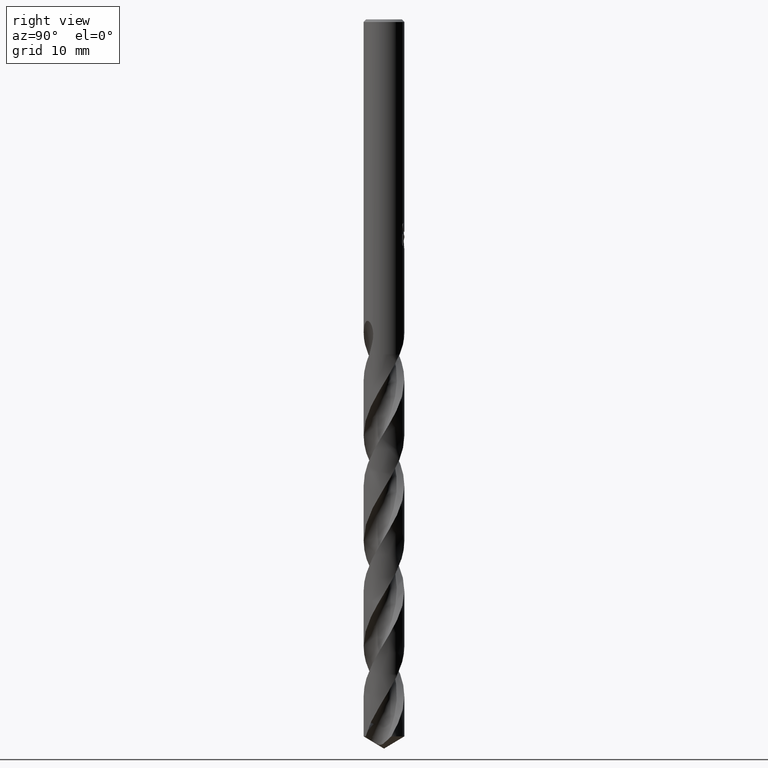
[diagram: clean part render]
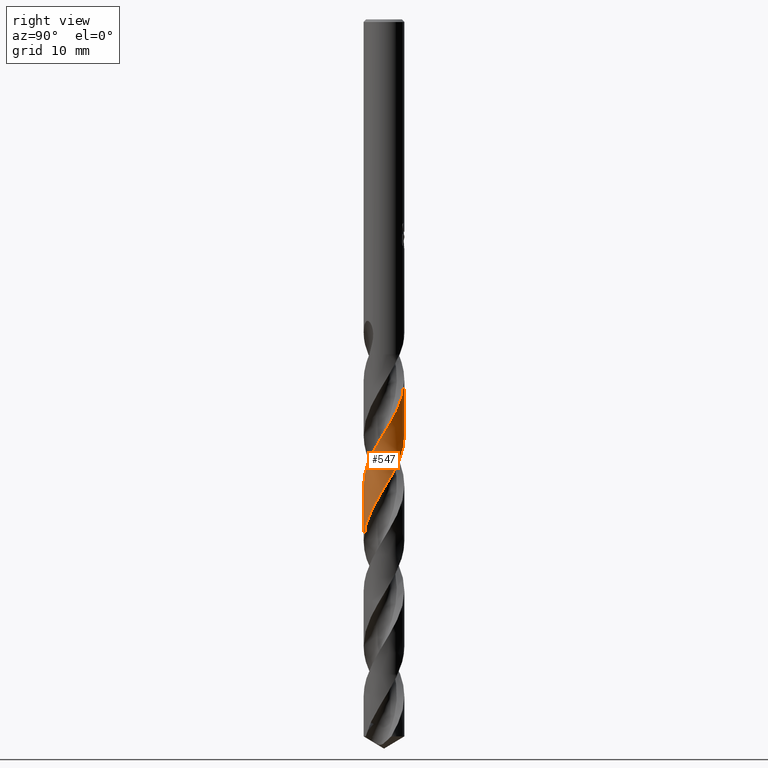
[diagram: same view with one face highlighted and labeled with its STEP entity id]
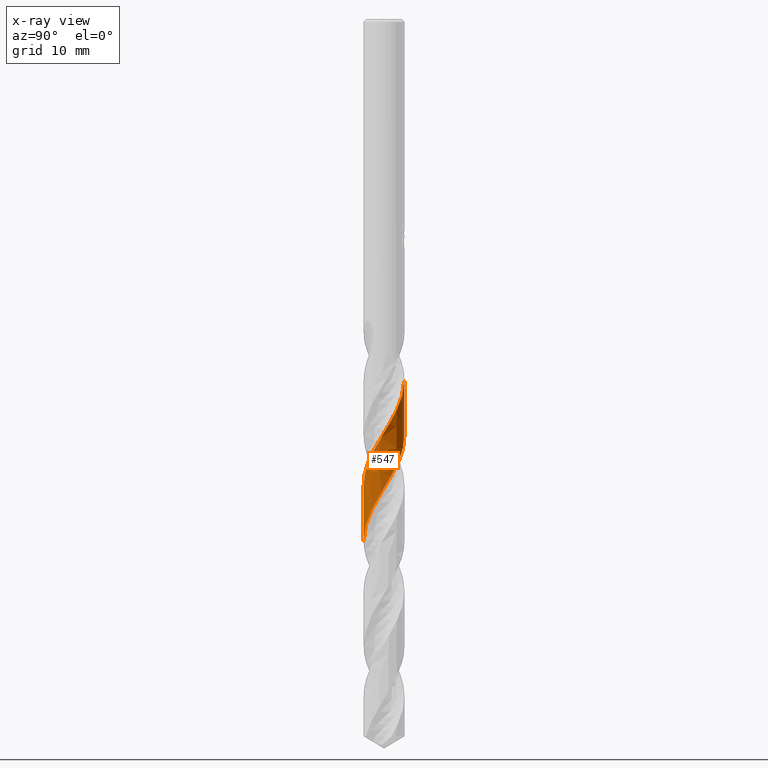
[diagram: x-ray of the same camera — body ghosted, the highlighted face saturated]
A machine part, right view. The second image highlights one B-rep face of the part: STEP entity #547.
The next image is the same camera in x-ray: the body ghosted, the highlighted face saturated — about 0% of this face is hidden behind the body in this view.
In plain terms, the highlighted conical surface has half-angle 0 deg.
Its self-contained STEP definition (entity closure, byte-faithful):
#363=EDGE_CURVE('',#585,#579,#870,.T.);
#369=EDGE_CURVE('',#563,#649,#877,.T.);
#547=ADVANCED_FACE('',(#1072),#1073,.T.);
#563=VERTEX_POINT('',#1091);
#579=VERTEX_POINT('',#1107);
#585=VERTEX_POINT('',#1113);
#641=EDGE_CURVE('',#563,#579,#1173,.T.);
#649=VERTEX_POINT('',#1182);
#751=EDGE_CURVE('',#585,#649,#1294,.T.);
#870=B_SPLINE_CURVE_WITH_KNOTS('',3,(#3023,#3024,#3025,#3026,#3027,#3028,#3029,#3030,#3031,#3032,#3033,#3034,#3035,#3036,#3037,#3038,#3039,#3040,#3041,#3042,#3043,#3044,#3045,#3046,#3047,#3048,#3049,#3050,#3051,#3052,#3053,#3054,#3055,#3056,#3057,#3058,#3059,#3060,#3061,#3062,#3063,#3064,#3065,#3066,#3067,#3068,#3069,#3070,#3071,#3072,#3073,#3074,#3075,#3076,#3077,#3078,#3079,#3080,#3081,#3082,#3083,#3084,#3085,#3086,#3087,#3088,#3089,#3090,#3091,#3092,#3093,#3094,#3095,#3096,#3097,#3098,#3099,#3100,#3101,#3102,#3103,#3104,#3105,#3106,#3107,#3108,#3109,#3110,#3111,#3112,#3113,#3114,#3115,#3116,#3117,#3118,#3119,#3120,#3121,#3122,#3123,#3124,#3125,#3126,#3127,#3128,#3129,#3130,#3131,#3132,#3133,#3134,#3135,#3136,#3137,#3138,#3139,#3140,#3141,#3142,#3143,#3144,#3145,#3146,#3147,#3148,#3149,#3150,#3151,#3152,#3153,#3154,#3155,#3156,#3157,#3158,#3159,#3160,#3161,#3162,#3163,#3164,#3165,#3166,#3167,#3168,#3169,#3170,#3171,#3172,#3173,#3174,#3175,#3176,#3177,#3178,#3179,#3180,#3181,#3182,#3183,#3184,#3185,#3186,#3187,#3188,#3189,#3190,#3191,#3192,#3193,#3194,#3195,#3196,#3197,#3198,#3199,#3200,#3201,#3202,#3203,#3204,#3205,#3206),.UNSPECIFIED.,.F.,.F.,(4,2,2,2,2,2,2,2,2,2,2,2,2,2,2,2,2,2,2,2,2,2,2,2,2,2,2,2,2,2,2,2,2,2,2,2,2,2,2,2,2,2,2,2,2,2,2,2,2,2,2,2,2,2,2,2,2,2,2,2,2,2,2,2,2,2,2,2,2,2,2,2,2,2,2,2,2,2,2,2,2,2,2,2,2,2,2,2,2,2,2,4),(0.0,0.14343858301379,0.188972399630387,0.211744788178116,0.226388955203841,0.238210347163206,0.24766553920278,0.255166161752204,0.26107393189106,0.26569909147927,0.269302027568404,0.27209724969379,0.274258743413754,0.275925844921514,0.277209001890916,0.545270508381398,0.610968393551029,0.647367371020632,0.678160427595024,0.714936567539963,0.782410513082369,0.82819280588672,0.910436501233352,1.25855004311537,1.43930362974492,1.58973807400488,1.66433376147384,1.82950022207393,3.16551126946806,3.67301060909354,4.50496522098054,5.83580154755301,6.66785787146221,6.82473951649302,8.0229591635271,8.88709863391488,9.77563814892931,10.6159071435761,11.3735993458,12.249961292363,13.138573513619,13.9689279713048,14.7171056654058,15.7087469961302,16.5262688927611,17.317145817988,18.0459376007642,19.0943834165513,19.9142534818849,20.2969261420562,21.5679701063304,22.3499891056177,23.0754685911926,24.1336346854687,24.9717835821478,25.3418710936875,26.631807079598,27.0111226154525,28.2856090249817,29.0598426841685,29.9527134948809,30.7380860372647,31.4645369148953,32.5181182498173,33.3376915339027,33.7182344623233,34.9911251160255,35.7676899280252,36.4911133562095,37.5536149244234,38.3914470573855,38.7597508371868,40.051414245316,40.4283228983953,41.7052335679549,42.0945068803702,43.3547075209412,44.1531160885726,44.8829446608781,45.9222080550438,46.6706701602811,47.5158874671734,48.608866087523,48.7607648400806,49.9654141616701,50.9837244245353,51.4985451677078,51.7567863406212,51.8855977534953,51.9497859521511,51.9818040647308,52.0137690310998),.UNSPECIFIED.);
#877=B_SPLINE_CURVE_WITH_KNOTS('',3,(#3218,#3219,#3220,#3221,#3222,#3223,#3224,#3225,#3226,#3227,#3228,#3229,#3230,#3231,#3232,#3233,#3234,#3235,#3236,#3237,#3238,#3239,#3240,#3241,#3242,#3243,#3244,#3245,#3246,#3247,#3248,#3249,#3250,#3251,#3252,#3253,#3254,#3255,#3256,#3257,#3258,#3259,#3260,#3261,#3262,#3263,#3264,#3265,#3266,#3267,#3268,#3269,#3270,#3271,#3272,#3273,#3274,#3275,#3276,#3277,#3278,#3279,#3280,#3281,#3282,#3283,#3284,#3285,#3286,#3287,#3288,#3289,#3290,#3291,#3292,#3293,#3294,#3295,#3296,#3297,#3298,#3299,#3300,#3301,#3302,#3303,#3304,#3305,#3306,#3307,#3308,#3309,#3310,#3311,#3312,#3313,#3314,#3315,#3316,#3317,#3318,#3319,#3320,#3321,#3322,#3323,#3324,#3325,#3326,#3327,#3328,#3329,#3330,#3331,#3332,#3333,#3334,#3335,#3336,#3337,#3338,#3339,#3340,#3341,#3342,#3343,#3344,#3345,#3346,#3347,#3348,#3349,#3350,#3351,#3352,#3353,#3354,#3355,#3356,#3357,#3358,#3359,#3360,#3361,#3362,#3363,#3364,#3365,#3366,#3367,#3368,#3369,#3370,#3371),.UNSPECIFIED.,.F.,.F.,(4,2,2,2,2,2,2,2,2,2,2,2,2,2,2,2,2,2,2,2,2,2,2,2,2,2,2,2,2,2,2,2,2,2,2,2,2,2,2,2,2,2,2,2,2,2,2,2,2,2,2,2,2,2,2,2,2,2,2,2,2,2,2,2,2,2,2,2,2,2,2,2,2,2,2,2,4),(0.0,0.0402327924461059,1.38903119195594,2.13117347377366,2.95919916126963,3.73005424034199,4.52057601376633,5.35231172295412,6.62681414996502,6.98282198350909,7.93365808091712,8.76144638391114,9.56262136832775,10.3950714279436,11.6550650029972,12.0648807024055,13.2846357287767,13.6582611016672,14.5950054294006,15.4294665098076,16.4151197786019,17.2205977582088,18.5087701879141,18.5682732745359,19.4225927144624,19.8429733851361,20.5656832992116,21.3663636990638,22.1986358126029,23.4823316797768,23.6757525598291,25.2169764843597,25.3684600072268,26.2849223683913,26.7057554316701,27.4310464197736,28.2605551209937,29.0055973505011,29.807218723399,30.6401901329426,31.9378134505868,32.1344036050522,32.9297912618939,33.3511873257744,33.5289953407065,33.9132088244486,34.8509651581723,35.6860667437267,36.9426568017762,37.3549744929917,38.3343697192064,39.1609261019229,39.9376805339706,40.7718709907213,42.0741444148361,42.270559775572,43.8449906185465,43.904300960438,44.7704731410918,45.1894626592151,45.873732983219,46.5885200099584,47.910406577384,48.4180610166505,50.1263361298437,50.3433991536031,50.801710861817,51.0760971161525,51.2282284445184,51.3050519480967,51.4436251601096,51.5155651560572,51.5719361253895,51.6336217200829,51.7335249734407,52.0250253155775,52.4509052358259),.UNSPECIFIED.);
#1072=FACE_OUTER_BOUND('',#5555,.T.);
#1073=CONICAL_SURFACE('',#5556,2.39995,2.21936493711745E-006);
#1091=CARTESIAN_POINT('',(8.13096291229303E-016,-2.39994885598919,-61.5134996165615));
#1107=CARTESIAN_POINT('',(-1.25095808936629E-014,-2.39993433066251,-54.9686874302133));
#1113=CARTESIAN_POINT('',(-1.7466413392474E-014,2.39990676877383,-42.5498696774652));
#1173=LINE('',#6832,#6833);
#1182=CARTESIAN_POINT('',(6.71760039405538E-013,2.39992129238103,-49.0939070995218));
#1294=LINE('',#8730,#8731);
#3023=CARTESIAN_POINT('',(-1.66811490938291,1.72537320958596,-39.505));
#3024=CARTESIAN_POINT('',(-1.65116147605927,1.74176415403253,-39.5465931210194));
#3025=CARTESIAN_POINT('',(-1.63388868674062,1.75798173475211,-39.5882514765582));
#3026=CARTESIAN_POINT('',(-1.61061557163927,1.77918424059149,-39.6430816897766));
#3027=CARTESIAN_POINT('',(-1.60497321471459,1.78427597629089,-39.6562785545574));
#3028=CARTESIAN_POINT('',(-1.59644743816673,1.79189620121012,-39.6760670623909));
#3029=CARTESIAN_POINT('',(-1.59359572101758,1.79443284710127,-39.6826607483154));
#3030=CARTESIAN_POINT('',(-1.58889341593555,1.79859551464351,-39.6934910386165));
#3031=CARTESIAN_POINT('',(-1.58704903338521,1.80022319289269,-39.6977283924381));
#3032=CARTESIAN_POINT('',(-1.58370816984497,1.8031623834421,-39.7053844342152));
#3033=CARTESIAN_POINT('',(-1.58221326648206,1.80447426564491,-39.7088032347847));
#3034=CARTESIAN_POINT('',(-1.57951771859383,1.80683386367879,-39.7149552228815));
#3035=CARTESIAN_POINT('',(-1.5783181252942,1.80788184477078,-39.7176885389849));
#3036=CARTESIAN_POINT('',(-1.57616374475989,1.80976015799608,-39.722589276344));
#3037=CARTESIAN_POINT('',(-1.57520964263273,1.81059067367088,-39.7247568101813));
#3038=CARTESIAN_POINT('',(-1.57350206066509,1.81207469607829,-39.7286310113979));
#3039=CARTESIAN_POINT('',(-1.57274901863907,1.81272832578436,-39.7303377655016));
#3040=CARTESIAN_POINT('',(-1.57140518987042,1.81389328110228,-39.7333803693969));
#3041=CARTESIAN_POINT('',(-1.57081467817656,1.81440468687209,-39.7347162810193));
#3042=CARTESIAN_POINT('',(-1.56976341064944,1.81531422644739,-39.7370926256394));
#3043=CARTESIAN_POINT('',(-1.56930282508988,1.8157124113529,-39.7381331005652));
#3044=CARTESIAN_POINT('',(-1.56848445141761,1.81641936657703,-39.7399806566078));
#3045=CARTESIAN_POINT('',(-1.56812676748327,1.81672816884439,-39.7407877650521));
#3046=CARTESIAN_POINT('',(-1.56749221809113,1.81727567254779,-39.7422189116155));
#3047=CARTESIAN_POINT('',(-1.56721541571231,1.81751439369398,-39.7428429671543));
#3048=CARTESIAN_POINT('',(-1.56672495886431,1.81793718027682,-39.7439482891671));
#3049=CARTESIAN_POINT('',(-1.56651134241958,1.81812125761521,-39.7444295662224));
#3050=CARTESIAN_POINT('',(-1.5661332091682,1.81844698606228,-39.7452812487038));
#3051=CARTESIAN_POINT('',(-1.56596871485132,1.81858864453915,-39.7456516611125));
#3052=CARTESIAN_POINT('',(-1.53143321238679,1.8483216119482,-39.8234019731374));
#3053=CARTESIAN_POINT('',(-1.49619614347158,1.87699252815494,-39.8990170557056));
#3054=CARTESIAN_POINT('',(-1.45004601050293,1.91233437443527,-39.9939132931892));
#3055=CARTESIAN_POINT('',(-1.44089047438461,1.919242704989,-40.0125527009415));
#3056=CARTESIAN_POINT('',(-1.42653647542275,1.92991194591684,-40.0415134372217));
#3057=CARTESIAN_POINT('',(-1.42139782130385,1.93369981993919,-40.0518299635746));
#3058=CARTESIAN_POINT('',(-1.41187028036799,1.94066423015582,-40.0708697820199));
#3059=CARTESIAN_POINT('',(-1.40748944337404,1.94384387522351,-40.0795904813977));
#3060=CARTESIAN_POINT('',(-1.39784336635155,1.95079527097444,-40.0987231184728));
#3061=CARTESIAN_POINT('',(-1.39257386166495,1.95456045192554,-40.1091300910956));
#3062=CARTESIAN_POINT('',(-1.37757931617723,1.9651828143834,-40.1386285678068));
#3063=CARTESIAN_POINT('',(-1.36781664473711,1.97199049644354,-40.1576983983493));
#3064=CARTESIAN_POINT('',(-1.35133228975423,1.98330373809544,-40.1897193768259));
#3065=CARTESIAN_POINT('',(-1.34464625931233,1.98784285885502,-40.2026584058349));
#3066=CARTESIAN_POINT('',(-1.32588660098175,2.00044078333827,-40.2388547898046));
#3067=CARTESIAN_POINT('',(-1.31381472673807,2.00839055265299,-40.2620607244693));
#3068=CARTESIAN_POINT('',(-1.24955895394632,2.04986805554043,-40.3854330590874));
#3069=CARTESIAN_POINT('',(-1.19664572311853,2.08117473323045,-40.4861201634683));
#3070=CARTESIAN_POINT('',(-1.11518339460191,2.12530015236144,-40.6387293243058));
#3071=CARTESIAN_POINT('',(-1.08707764742374,2.13981138435137,-40.6909666859569));
#3072=CARTESIAN_POINT('',(-1.0351347523055,2.16534545736955,-40.7866322654595));
#3073=CARTESIAN_POINT('',(-1.01134989492385,2.17655620772534,-40.8301102823069));
#3074=CARTESIAN_POINT('',(-0.975501226205669,2.19273852148706,-40.8951132302661));
#3075=CARTESIAN_POINT('',(-0.963570493221686,2.1980075555424,-40.9166608946376));
#3076=CARTESIAN_POINT('',(-0.925074689836797,2.21463475591342,-40.9859038561863));
#3077=CARTESIAN_POINT('',(-0.898329716713567,2.22561829576418,-41.0335937441656));
#3078=CARTESIAN_POINT('',(-0.653364597711251,2.32107797297747,-41.4671678202647));
#3079=CARTESIAN_POINT('',(-0.423931167260356,2.37375436452219,-41.8501640870163));
#3080=CARTESIAN_POINT('',(-0.101690200601581,2.39940181352066,-42.3824463810793));
#3081=CARTESIAN_POINT('',(-0.012700879729454,2.40151939398125,-42.5288596292748));
#3082=CARTESIAN_POINT('',(0.221834856677543,2.39407349108038,-42.9157498658143));
#3083=CARTESIAN_POINT('',(0.366865161562154,2.37618531454334,-43.1556884881089));
#3084=CARTESIAN_POINT('',(0.737518441464023,2.29567091450075,-43.7801763087456));
#3085=CARTESIAN_POINT('',(0.957099943411525,2.21312985632647,-44.16238168125));
#3086=CARTESIAN_POINT('',(1.28887652849914,2.02969055337897,-44.7870445244021));
#3087=CARTESIAN_POINT('',(1.40985600842421,1.94761033747481,-45.0266579718643));
#3088=CARTESIAN_POINT('',(1.54393777069402,1.83755145172038,-45.3121811128701));
#3089=CARTESIAN_POINT('',(1.56489981937345,1.81973285221181,-45.3574636731974));
#3090=CARTESIAN_POINT('',(1.74326636530614,1.66275388390024,-45.7488171583069));
#3091=CARTESIAN_POINT('',(1.88214100341168,1.50377228774134,-46.0940477129657));
#3092=CARTESIAN_POINT('',(2.08247401516652,1.20244963524964,-46.689651562324));
#3093=CARTESIAN_POINT('',(2.15421977507757,1.06858659344684,-46.9385567158409));
#3094=CARTESIAN_POINT('',(2.2731287283663,0.785331232709335,-47.4449329730824));
#3095=CARTESIAN_POINT('',(2.31932262499683,0.636126724869852,-47.7010262895585));
#3096=CARTESIAN_POINT('',(2.38042656432452,0.33899861045074,-48.200305920231));
#3097=CARTESIAN_POINT('',(2.39673865150483,0.192227506032483,-48.4424837840682));
#3098=CARTESIAN_POINT('',(2.40198810844994,-0.0878153366752,-48.9041652334711));
#3099=CARTESIAN_POINT('',(2.39345191732934,-0.220644821739502,-49.1226891655413));
#3100=CARTESIAN_POINT('',(2.35138358211255,-0.504248091417622,-49.5946235746941));
#3101=CARTESIAN_POINT('',(2.3142676279802,-0.653752458587922,-49.847047505073));
#3102=CARTESIAN_POINT('',(2.21132066606633,-0.945493300622265,-50.3569994689623));
#3103=CARTESIAN_POINT('',(2.14528532510075,-1.08706165080319,-50.6131182666328));
#3104=CARTESIAN_POINT('',(1.9917883213475,-1.34671941953072,-51.1095766196237));
#3105=CARTESIAN_POINT('',(1.90641083937114,-1.46506967477942,-51.34892240643));
#3106=CARTESIAN_POINT('',(1.72483468176204,-1.67385659087495,-51.8050112752487));
#3107=CARTESIAN_POINT('',(1.63076367875978,-1.7656434765444,-52.0208145201963));
#3108=CARTESIAN_POINT('',(1.39553010085153,-1.96021147370965,-52.5233209361732));
#3109=CARTESIAN_POINT('',(1.24985102819221,-2.05614975944948,-52.8088734728015));
#3110=CARTESIAN_POINT('',(0.967656405897659,-2.2008739293156,-53.3316017981571));
#3111=CARTESIAN_POINT('',(0.834471470277099,-2.25475229784414,-53.5672676653043));
#3112=CARTESIAN_POINT('',(0.564400419222825,-2.33674730974415,-54.0318003482114));
#3113=CARTESIAN_POINT('',(0.42842584451364,-2.3654487671952,-54.2598354977291));
#3114=CARTESIAN_POINT('',(0.164004289017045,-2.39772908928919,-54.6989259405913));
#3115=CARTESIAN_POINT('',(0.0361000453592362,-2.40306738956722,-54.9091681100956));
#3116=CARTESIAN_POINT('',(-0.275508622086621,-2.39115588830912,-55.4224986304087));
#3117=CARTESIAN_POINT('',(-0.457843128722606,-2.36301807048178,-55.7243142324753));
#3118=CARTESIAN_POINT('',(-0.773693737101897,-2.27634669941586,-56.2641392046234));
#3119=CARTESIAN_POINT('',(-0.908671489986122,-2.22591951085259,-56.5004605603982));
#3120=CARTESIAN_POINT('',(-1.09892676806027,-2.13461341526206,-56.8477783905829));
#3121=CARTESIAN_POINT('',(-1.15820025353705,-2.10304125857044,-56.9581833705522));
#3122=CARTESIAN_POINT('',(-1.40824598142338,-1.9560797529062,-57.4359711763643));
#3123=CARTESIAN_POINT('',(-1.58385638109884,-1.81683422680588,-57.8019722202823));
#3124=CARTESIAN_POINT('',(-1.83240637405878,-1.55590783517914,-58.3950657523629));
#3125=CARTESIAN_POINT('',(-1.91832793835441,-1.44863443066851,-58.6206123186413));
#3126=CARTESIAN_POINT('',(-2.06532152026689,-1.22896511408586,-59.0562851665032));
#3127=CARTESIAN_POINT('',(-2.12757929217738,-1.11774239634931,-59.2656234372791));
#3128=CARTESIAN_POINT('',(-2.25828105586763,-0.833301248154513,-59.7809227705852));
#3129=CARTESIAN_POINT('',(-2.31594039297593,-0.656191425013833,-60.085587877644));
#3130=CARTESIAN_POINT('',(-2.38165687081031,-0.330235058513702,-60.6336261455698));
#3131=CARTESIAN_POINT('',(-2.39742259830914,-0.183729876644085,-60.8752358095113));
#3132=CARTESIAN_POINT('',(-2.40066012164822,0.0283256519832455,-61.2242754928902));
#3133=CARTESIAN_POINT('',(-2.39901412003392,0.0932659557342408,-61.3310826662175));
#3134=CARTESIAN_POINT('',(-2.37983841524653,0.383835732122894,-61.8108107347656));
#3135=CARTESIAN_POINT('',(-2.33306617211165,0.606507793797689,-62.1822409456184));
#3136=CARTESIAN_POINT('',(-2.23301241278322,0.881962125767723,-62.6645644591967));
#3137=CARTESIAN_POINT('',(-2.20769034000134,0.943557566710335,-62.7740510754076));
#3138=CARTESIAN_POINT('',(-2.08629677397333,1.20712298448877,-63.2520760797525));
#3139=CARTESIAN_POINT('',(-1.96476130802076,1.3962725951205,-63.6192105797545));
#3140=CARTESIAN_POINT('',(-1.7300342412712,1.66890651929837,-64.211309770652));
#3141=CARTESIAN_POINT('',(-1.63278157956301,1.76415809788107,-64.4347218866551));
#3142=CARTESIAN_POINT('',(-1.40728959227948,1.95034767301425,-64.916733728251));
#3143=CARTESIAN_POINT('',(-1.27698299839366,2.0380605637109,-65.1742221258647));
#3144=CARTESIAN_POINT('',(-1.01758335847503,2.17792163927132,-65.6592527399317));
#3145=CARTESIAN_POINT('',(-0.890840607357512,2.2327522761876,-65.8858612513167));
#3146=CARTESIAN_POINT('',(-0.639304866225568,2.31675047921682,-66.3229785309425));
#3147=CARTESIAN_POINT('',(-0.515357855782215,2.34744189016004,-66.5326887299916));
#3148=CARTESIAN_POINT('',(-0.206962482847773,2.39816611120735,-67.0471726477625));
#3149=CARTESIAN_POINT('',(-0.0216414234368788,2.40697087762574,-67.3506601308401));
#3150=CARTESIAN_POINT('',(0.306202053258478,2.38468736883599,-67.8922463672981));
#3151=CARTESIAN_POINT('',(0.448551843482357,2.3620626534197,-68.1286381637811));
#3152=CARTESIAN_POINT('',(0.652875642336884,2.31042155929509,-68.4754878081433));
#3153=CARTESIAN_POINT('',(0.716926955593096,2.29135462605597,-68.5853533757256));
#3154=CARTESIAN_POINT('',(0.991353201798371,2.19703429680611,-69.0633818474954));
#3155=CARTESIAN_POINT('',(1.19155863307111,2.09523570836627,-69.4301480632134));
#3156=CARTESIAN_POINT('',(1.48661612511247,1.88902679566811,-70.0225968053905));
#3157=CARTESIAN_POINT('',(1.59149236299962,1.80154480233725,-70.2467288862866));
#3158=CARTESIAN_POINT('',(1.77853663541859,1.61640647036126,-70.6805223159693));
#3159=CARTESIAN_POINT('',(1.86156329036984,1.52005849197138,-70.8894095365316));
#3160=CARTESIAN_POINT('',(2.04681901365659,1.26696903709054,-71.4057143733402));
#3161=CARTESIAN_POINT('',(2.13905220422323,1.10411813303475,-71.711824156423));
#3162=CARTESIAN_POINT('',(2.26858902357478,0.796859836660503,-72.2613920803637));
#3163=CARTESIAN_POINT('',(2.31316115733026,0.656364437502041,-72.5030699930634));
#3164=CARTESIAN_POINT('',(2.35841099997398,0.449397270436922,-72.8517366203973));
#3165=CARTESIAN_POINT('',(2.36966209045939,0.385691399551147,-72.9581015729803));
#3166=CARTESIAN_POINT('',(2.40871250901403,0.0969305509661457,-73.438136514715));
#3167=CARTESIAN_POINT('',(2.40711537826401,-0.131059229017311,-73.8103007534343));
#3168=CARTESIAN_POINT('',(2.36369631321072,-0.420969251512652,-74.2927510882612));
#3169=CARTESIAN_POINT('',(2.35118671105162,-0.48599621457738,-74.4016174987975));
#3170=CARTESIAN_POINT('',(2.28459275688301,-0.768634062595984,-74.8799700148646));
#3171=CARTESIAN_POINT('',(2.20281755294077,-0.978694194429605,-75.2480339045235));
#3172=CARTESIAN_POINT('',(2.05955097846364,-1.23403192312596,-75.7298991976771));
#3173=CARTESIAN_POINT('',(2.02355709848965,-1.29220646191383,-75.8423526142233));
#3174=CARTESIAN_POINT('',(1.86076072204825,-1.53181700220541,-76.3195403754183));
#3175=CARTESIAN_POINT('',(1.71158993633661,-1.69688929810266,-76.6829429575317));
#3176=CARTESIAN_POINT('',(1.43432070635066,-1.92933612179918,-77.2784281595533));
#3177=CARTESIAN_POINT('',(1.31914255256505,-2.00983499700988,-77.5089779557294));
#3178=CARTESIAN_POINT('',(1.08663132966684,-2.14373046578269,-77.9512301674568));
#3179=CARTESIAN_POINT('',(0.970596272098183,-2.19870987882727,-78.1620953988567));
#3180=CARTESIAN_POINT('',(0.679883404870508,-2.30890726867751,-78.6738656842506));
#3181=CARTESIAN_POINT('',(0.502341789714891,-2.35390958385125,-78.9735133667457));
#3182=CARTESIAN_POINT('',(0.19128064740395,-2.39596073180855,-79.4908566309156));
#3183=CARTESIAN_POINT('',(0.0597596245086158,-2.4028486601523,-79.7070310922383));
#3184=CARTESIAN_POINT('',(-0.220214298319209,-2.39447836598477,-80.168044267588));
#3185=CARTESIAN_POINT('',(-0.367893313537178,-2.37626450495801,-80.4120452987706));
#3186=CARTESIAN_POINT('',(-0.700334468019553,-2.30354500362895,-80.9729423750585));
#3187=CARTESIAN_POINT('',(-0.882305138696736,-2.24017977514743,-81.2878548874881));
#3188=CARTESIAN_POINT('',(-1.07883661273705,-2.14401336781988,-81.6479483311245));
#3189=CARTESIAN_POINT('',(-1.102611764816,-2.13188389363205,-81.6918758547589));
#3190=CARTESIAN_POINT('',(-1.31307156084249,-2.02005159194709,-82.0843929648038));
#3191=CARTESIAN_POINT('',(-1.48607843574648,-1.89641300618864,-82.4321792214351));
#3192=CARTESIAN_POINT('',(-1.77125772448913,-1.62931486223061,-83.0754301789286));
#3193=CARTESIAN_POINT('',(-1.88778208330555,-1.49274352815098,-83.3692871588386));
#3194=CARTESIAN_POINT('',(-2.03870342718019,-1.26959198179414,-83.8129780295573));
#3195=CARTESIAN_POINT('',(-2.08512328429071,-1.19182628175709,-83.9618133638465));
#3196=CARTESIAN_POINT('',(-2.14808550155789,-1.07134811976006,-84.1854768160977));
#3197=CARTESIAN_POINT('',(-2.16797205602367,-1.03051263053621,-84.2601658038771));
#3198=CARTESIAN_POINT('',(-2.19602431797082,-0.968497972113602,-84.3721460754933));
#3199=CARTESIAN_POINT('',(-2.20506682427049,-0.94772975059257,-84.4094106636127));
#3200=CARTESIAN_POINT('',(-2.21817194807276,-0.916427627906155,-84.4652513065714));
#3201=CARTESIAN_POINT('',(-2.22245672571233,-0.905987117901448,-84.4838228574937));
#3202=CARTESIAN_POINT('',(-2.22876783995659,-0.890294955775646,-84.5116595030786));
#3203=CARTESIAN_POINT('',(-2.23084976418929,-0.885065317547575,-84.5209237959167));
#3204=CARTESIAN_POINT('',(-2.23497320341359,-0.874600571043994,-84.5394373725911));
#3205=CARTESIAN_POINT('',(-2.23701478247105,-0.869365471371292,-84.548686250539));
#3206=CARTESIAN_POINT('',(-2.23903745796532,-0.864124563837988,-84.5579345143339));
#3218=CARTESIAN_POINT('',(1.05190703588296,-2.15719530591459,-84.5579345143338));
#3219=CARTESIAN_POINT('',(1.05812048696504,-2.15416542998993,-84.5464425196042));
#3220=CARTESIAN_POINT('',(1.06435257192491,-2.15109331978557,-84.5348917925545));
#3221=CARTESIAN_POINT('',(1.28089696844611,-2.04315873887548,-84.1328781924707));
#3222=CARTESIAN_POINT('',(1.47512611749647,-1.90782913155918,-83.7492670861824));
#3223=CARTESIAN_POINT('',(1.74152823203223,-1.6564911791666,-83.1461625547541));
#3224=CARTESIAN_POINT('',(1.82866042257726,-1.55977863176806,-82.9312603108275));
#3225=CARTESIAN_POINT('',(1.995689116366,-1.34099683465304,-82.478354139217));
#3226=CARTESIAN_POINT('',(2.07310844725574,-1.21789024208854,-82.2409356473858));
#3227=CARTESIAN_POINT('',(2.20020629400506,-0.968150233600546,-81.7797870705889));
#3228=CARTESIAN_POINT('',(2.25112345970702,-0.842978048313644,-81.5563839856781));
#3229=CARTESIAN_POINT('',(2.3324387794588,-0.582094423986847,-81.1060825794729));
#3230=CARTESIAN_POINT('',(2.36214108605588,-0.446602260782441,-80.8794159384221));
#3231=CARTESIAN_POINT('',(2.39877510694721,-0.164595326651107,-80.411933768206));
#3232=CARTESIAN_POINT('',(2.40431473723776,-0.0188259422139969,-80.1712277109946));
#3233=CARTESIAN_POINT('',(2.38493604913105,0.348773134456678,-79.5643071340697));
#3234=CARTESIAN_POINT('',(2.34232064833355,0.56824779689304,-79.2022767147038));
#3235=CARTESIAN_POINT('',(2.25005197020967,0.837293721714847,-78.7323577884763));
#3236=CARTESIAN_POINT('',(2.22764158374868,0.89522569237924,-78.6295179893061));
#3237=CARTESIAN_POINT('',(2.13691211524948,1.10508424776942,-78.2523062869471));
#3238=CARTESIAN_POINT('',(2.05514576767973,1.25063810442638,-77.9801054429341));
#3239=CARTESIAN_POINT('',(1.87496958408713,1.50514989543253,-77.4673099882908));
#3240=CARTESIAN_POINT('',(1.78067908831332,1.61557295721855,-77.2275475518472));
#3241=CARTESIAN_POINT('',(1.57682556790305,1.81471300673371,-76.757903588542));
#3242=CARTESIAN_POINT('',(1.46810352178675,1.90375870484381,-76.5282755566101));
#3243=CARTESIAN_POINT('',(1.23158783080428,2.06503764335195,-76.0576787697316));
#3244=CARTESIAN_POINT('',(1.1040127450203,2.13593320783955,-75.8168563624128));
#3245=CARTESIAN_POINT('',(0.769731768617574,2.28382635752947,-75.2141302759874));
#3246=CARTESIAN_POINT('',(0.557342038628314,2.3446882095163,-74.8562529482745));
#3247=CARTESIAN_POINT('',(0.26903269884786,2.38592165609157,-74.3752409701361));
#3248=CARTESIAN_POINT('',(0.197754800256833,2.39288951310564,-74.256678969471));
#3249=CARTESIAN_POINT('',(-0.0868453188146343,2.40787237731742,-73.7866591890485));
#3250=CARTESIAN_POINT('',(-0.300294373126444,2.39063575960726,-73.4394746339067));
#3251=CARTESIAN_POINT('',(-0.572414904322689,2.33162621733629,-72.9800072550525));
#3252=CARTESIAN_POINT('',(-0.635525819835647,2.31521886917099,-72.8719965719919));
#3253=CARTESIAN_POINT('',(-0.854437153930204,2.2486799131487,-72.4942214233136));
#3254=CARTESIAN_POINT('',(-1.00586891529908,2.18517977046874,-72.2263082741807));
#3255=CARTESIAN_POINT('',(-1.27814501691304,2.03655742048895,-71.7164376362041));
#3256=CARTESIAN_POINT('',(-1.3995584925515,1.9550714190575,-71.4752546779979));
#3257=CARTESIAN_POINT('',(-1.64616852322461,1.75487123774634,-70.9513704992657));
#3258=CARTESIAN_POINT('',(-1.76775579290612,1.63235053207619,-70.6701450241122));
#3259=CARTESIAN_POINT('',(-1.96311840553647,1.38774327634101,-70.1550799190913));
#3260=CARTESIAN_POINT('',(-2.0410098055056,1.27039068718788,-69.9223527971452));
#3261=CARTESIAN_POINT('',(-2.21565531101068,0.949353707118014,-69.320303567715));
#3262=CARTESIAN_POINT('',(-2.29463137173293,0.738035085820285,-68.9550940050964));
#3263=CARTESIAN_POINT('',(-2.34534776121127,0.509196064685899,-68.5671846453962));
#3264=CARTESIAN_POINT('',(-2.34752068645903,0.499082968606615,-68.550057740995));
#3265=CARTESIAN_POINT('',(-2.37999075495201,0.343037234742877,-68.2863498966169));
#3266=CARTESIAN_POINT('',(-2.39676789955262,0.194305318305941,-68.041440458356));
#3267=CARTESIAN_POINT('',(-2.40091719845134,-0.02910188252485,-67.6743934260765));
#3268=CARTESIAN_POINT('',(-2.39889043230432,-0.102745028356778,-67.5535093369848));
#3269=CARTESIAN_POINT('',(-2.38420855003248,-0.302263896819012,-67.2241692184905));
#3270=CARTESIAN_POINT('',(-2.36499419777194,-0.427295409859253,-67.0149934248711));
#3271=CARTESIAN_POINT('',(-2.30392351512654,-0.686543152244395,-66.576112941836));
#3272=CARTESIAN_POINT('',(-2.25994486034617,-0.819824188729084,-66.3467919765989));
#3273=CARTESIAN_POINT('',(-2.14692516058497,-1.08247473652163,-65.8767119061601));
#3274=CARTESIAN_POINT('',(-2.07734106855997,-1.21060631184399,-65.6360841427287));
#3275=CARTESIAN_POINT('',(-1.87237536607355,-1.51797075831104,-65.026988252401));
#3276=CARTESIAN_POINT('',(-1.72261814143995,-1.6859419736809,-64.6626596295981));
#3277=CARTESIAN_POINT('',(-1.52631108366163,-1.85237515949745,-64.2373591098053));
#3278=CARTESIAN_POINT('',(-1.5001960465348,-1.87358711603602,-64.1816288257225));
#3279=CARTESIAN_POINT('',(-1.26183353880648,-2.05901672208994,-63.6823676056406));
#3280=CARTESIAN_POINT('',(-1.02411565240465,-2.18696317703168,-63.2479129527563));
#3281=CARTESIAN_POINT('',(-0.745299171050022,-2.28144494395391,-62.7610607389056));
#3282=CARTESIAN_POINT('',(-0.720237446110441,-2.28948063166665,-62.7174715485942));
#3283=CARTESIAN_POINT('',(-0.542190615128179,-2.34334707304081,-62.4099389737822));
#3284=CARTESIAN_POINT('',(-0.38487049623408,-2.3743078111642,-62.1480251111462));
#3285=CARTESIAN_POINT('',(-0.151969399315513,-2.39626414921693,-61.7636889217298));
#3286=CARTESIAN_POINT('',(-0.078488910427091,-2.39978917077779,-61.6428889046072));
#3287=CARTESIAN_POINT('',(0.121507997108242,-2.40020962408849,-61.3131945562946));
#3288=CARTESIAN_POINT('',(0.247964099544042,-2.39046918198822,-61.1035510440759));
#3289=CARTESIAN_POINT('',(0.516482942240285,-2.34819558233671,-60.6561385177021));
#3290=CARTESIAN_POINT('',(0.657383744516996,-2.31270735211906,-60.4189034714231));
#3291=CARTESIAN_POINT('',(0.917115504496245,-2.22162080961193,-59.9658659277865));
#3292=CARTESIAN_POINT('',(1.0361283870961,-2.16866263684336,-59.7505048009648));
#3293=CARTESIAN_POINT('',(1.27314871918203,-2.03921928748299,-59.3055175507785));
#3294=CARTESIAN_POINT('',(1.38996912630697,-1.96146973809038,-59.0762340278377));
#3295=CARTESIAN_POINT('',(1.61314874259824,-1.78288832403485,-58.6063008084179));
#3296=CARTESIAN_POINT('',(1.718181145142,-1.68186565517346,-58.3657772281185));
#3297=CARTESIAN_POINT('',(1.9615525660248,-1.40115162843968,-57.7532723491362));
#3298=CARTESIAN_POINT('',(2.08470311448659,-1.21024187959101,-57.3855686026857));
#3299=CARTESIAN_POINT('',(2.19358566114638,-0.974195874235831,-56.9558636212395));
#3300=CARTESIAN_POINT('',(2.20722824083091,-0.942878868925923,-56.8992816918028));
#3301=CARTESIAN_POINT('',(2.27280739312617,-0.783089483227594,-56.6138133789039));
#3302=CARTESIAN_POINT('',(2.31430800839972,-0.650402155666292,-56.386244122133));
#3303=CARTESIAN_POINT('',(2.35992603467077,-0.442577764692845,-56.0367260583374));
#3304=CARTESIAN_POINT('',(2.37238797318848,-0.369975139220121,-55.9158426562608));
#3305=CARTESIAN_POINT('',(2.38533147851419,-0.266177087935129,-55.7436163115217));
#3306=CARTESIAN_POINT('',(2.38857111687971,-0.235330962356444,-55.6925090658041));
#3307=CARTESIAN_POINT('',(2.39691472050339,-0.137745016912447,-55.5308671538957));
#3308=CARTESIAN_POINT('',(2.39982113316519,-0.0709227335929631,-55.4200794240003));
#3309=CARTESIAN_POINT('',(2.40020188578307,0.159422740015332,-55.039845480825));
#3310=CARTESIAN_POINT('',(2.38378793746664,0.322620995605707,-54.7722614951593));
#3311=CARTESIAN_POINT('',(2.32143055461084,0.62604153676528,-54.2630475125003));
#3312=CARTESIAN_POINT('',(2.27912949209503,0.76576730641155,-54.022170387251));
#3313=CARTESIAN_POINT('',(2.1424171017433,1.10345740045524,-53.4214248183985));
#3314=CARTESIAN_POINT('',(2.03300174204291,1.29395994018641,-53.0655065852997));
#3315=CARTESIAN_POINT('',(1.8555821937322,1.52368522302854,-52.5861891751463));
#3316=CARTESIAN_POINT('',(1.80925389546019,1.5784243815258,-52.4674521566367));
#3317=CARTESIAN_POINT('',(1.6443809016604,1.75636208111995,-52.0673338760702));
#3318=CARTESIAN_POINT('',(1.51525020890759,1.86893137741094,-51.7881798370436));
#3319=CARTESIAN_POINT('',(1.2568462815044,2.04958691922292,-51.2694720276662));
#3320=CARTESIAN_POINT('',(1.13153712747886,2.12132917080162,-51.0309335390424));
#3321=CARTESIAN_POINT('',(0.877431859375545,2.23787724552534,-50.5704273960335));
#3322=CARTESIAN_POINT('',(0.749699268419452,2.28385115267324,-50.3485483787329));
#3323=CARTESIAN_POINT('',(0.477961534887683,2.35635163894641,-49.8861508416522));
#3324=CARTESIAN_POINT('',(0.334345153665389,2.38095224989625,-49.6456556300673));
#3325=CARTESIAN_POINT('',(-0.0364486219382518,2.41033129416108,-49.0324398692748));
#3326=CARTESIAN_POINT('',(-0.26363715023587,2.39609520283882,-48.6640256769522));
#3327=CARTESIAN_POINT('',(-0.518560863088373,2.34347422740761,-48.2337091681134));
#3328=CARTESIAN_POINT('',(-0.551780724015234,2.33587608093391,-48.1772641093513));
#3329=CARTESIAN_POINT('',(-0.850433411317417,2.26082447284655,-47.668338489695));
#3330=CARTESIAN_POINT('',(-1.10223611602181,2.14926351479071,-47.2255334819247));
#3331=CARTESIAN_POINT('',(-1.3382637480903,1.99217303242349,-46.7561426521636));
#3332=CARTESIAN_POINT('',(-1.34682982278123,1.98639228104179,-46.7390403344895));
#3333=CARTESIAN_POINT('',(-1.48049357212549,1.89491742057838,-46.4711160763346));
#3334=CARTESIAN_POINT('',(-1.59748046913952,1.79745663797282,-46.2220767802482));
#3335=CARTESIAN_POINT('',(-1.75656226918342,1.63691961916379,-45.8508216061151));
#3336=CARTESIAN_POINT('',(-1.80594187643486,1.58226733260339,-45.7299443486696));
#3337=CARTESIAN_POINT('',(-1.92904480102394,1.43275866695562,-45.411026030263));
#3338=CARTESIAN_POINT('',(-1.99822905786439,1.3345661191532,-45.2123507871553));
#3339=CARTESIAN_POINT('',(-2.12415721393372,1.12394458966455,-44.8079491449422));
#3340=CARTESIAN_POINT('',(-2.18002024440735,1.01136750795592,-44.6023154271172));
#3341=CARTESIAN_POINT('',(-2.31346650268905,0.679266653899294,-44.0141141568932));
#3342=CARTESIAN_POINT('',(-2.36831991233495,0.452351481585211,-43.6310044834973));
#3343=CARTESIAN_POINT('',(-2.39793044770071,0.132104933962797,-43.1026532116377));
#3344=CARTESIAN_POINT('',(-2.40118155684037,0.0428789305266566,-42.956382570259));
#3345=CARTESIAN_POINT('',(-2.39367045576355,-0.346360875641758,-42.3163349849855));
#3346=CARTESIAN_POINT('',(-2.33167702133774,-0.643139971428365,-41.8205448396059));
#3347=CARTESIAN_POINT('',(-2.20128653826641,-0.956735309974548,-41.2655341750196));
#3348=CARTESIAN_POINT('',(-2.18572056156757,-0.991785586664441,-41.2030143191187));
#3349=CARTESIAN_POINT('',(-2.13461075238596,-1.09979459336737,-41.0085467869568));
#3350=CARTESIAN_POINT('',(-2.09649641099772,-1.17081921310148,-40.8790977704361));
#3351=CARTESIAN_POINT('',(-2.02947636742664,-1.28184108932356,-40.6627848177852));
#3352=CARTESIAN_POINT('',(-2.00353357875564,-1.32196501950062,-40.581586099169));
#3353=CARTESIAN_POINT('',(-1.96213234530965,-1.38211620810508,-40.4542011856782));
#3354=CARTESIAN_POINT('',(-1.94718894511447,-1.4030796759944,-40.4086460607985));
#3355=CARTESIAN_POINT('',(-1.92446952982542,-1.43391462286918,-40.3397547019019));
#3356=CARTESIAN_POINT('',(-1.91681302901546,-1.44413207884862,-40.3166001734074));
#3357=CARTESIAN_POINT('',(-1.89525952842145,-1.47242758028058,-40.2515321629437));
#3358=CARTESIAN_POINT('',(-1.88697588040128,-1.48297269320911,-40.2260429814596));
#3359=CARTESIAN_POINT('',(-1.86903114026141,-1.50543891945813,-40.1743169150638));
#3360=CARTESIAN_POINT('',(-1.86276209553863,-1.51319092898769,-40.1567274289867));
#3361=CARTESIAN_POINT('',(-1.85132278257486,-1.52715208987035,-40.1254970610923));
#3362=CARTESIAN_POINT('',(-1.84621041313279,-1.53332951731306,-40.1118311428286));
#3363=CARTESIAN_POINT('',(-1.83531475716085,-1.54635853633682,-40.0833185068853));
#3364=CARTESIAN_POINT('',(-1.82951579712139,-1.55321622376824,-40.0684875315053));
#3365=CARTESIAN_POINT('',(-1.81403662354031,-1.57130948617516,-40.0298028801985));
#3366=CARTESIAN_POINT('',(-1.8041850734903,-1.58261654084316,-40.0060704053876));
#3367=CARTESIAN_POINT('',(-1.76442105464462,-1.62736924462994,-39.9137541665175));
#3368=CARTESIAN_POINT('',(-1.73242243169168,-1.66152029327157,-39.8467929090216));
#3369=CARTESIAN_POINT('',(-1.64696804320127,-1.74704601723925,-39.6854452254464));
#3370=CARTESIAN_POINT('',(-1.59105302464743,-1.79847005734829,-39.5938489771972));
#3371=CARTESIAN_POINT('',(-1.52928701150974,-1.84954083482635,-39.505));
#5555=EDGE_LOOP('',(#9102,#9103,#9104,#9105));
#5556=AXIS2_PLACEMENT_3D('',#9106,#9107,#9108);
#6832=CARTESIAN_POINT('',(2.93925093004709E-016,-2.39995,-62.0289672571669));
#6833=VECTOR('',#9182,1.0);
#8730=CARTESIAN_POINT('',(-2.93873710766494E-016,2.39995,-62.0289672571669));
#8731=VECTOR('',#9310,1.0);
#9102=ORIENTED_EDGE('',*,*,#751,.F.);
#9103=ORIENTED_EDGE('',*,*,#363,.T.);
#9104=ORIENTED_EDGE('',*,*,#641,.F.);
#9105=ORIENTED_EDGE('',*,*,#369,.T.);
#9106=CARTESIAN_POINT('',(0.0,0.0,-62.0289672571669));
#9107=DIRECTION('',(0.0,-0.0,-1.0));
#9108=DIRECTION('',(0.0,1.0,0.0));
#9182=DIRECTION('',(-2.7178484034424E-022,2.21936493711563E-006,0.999999999997537));
#9310=DIRECTION('',(-2.7178484034424E-022,2.21936493711563E-006,-0.999999999997537));